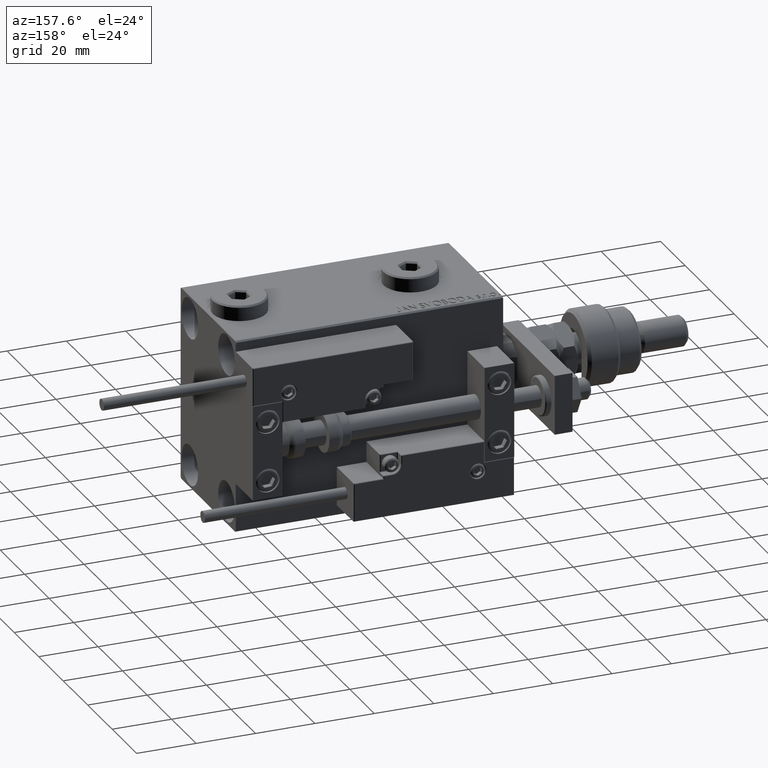
[diagram: clean part render]
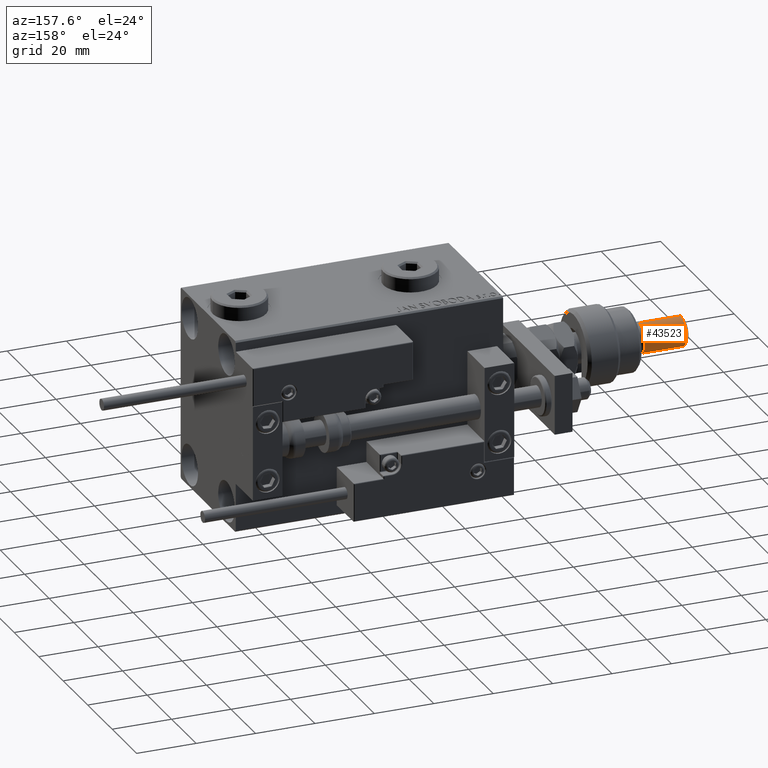
[diagram: same view with one face highlighted and labeled with its STEP entity id]
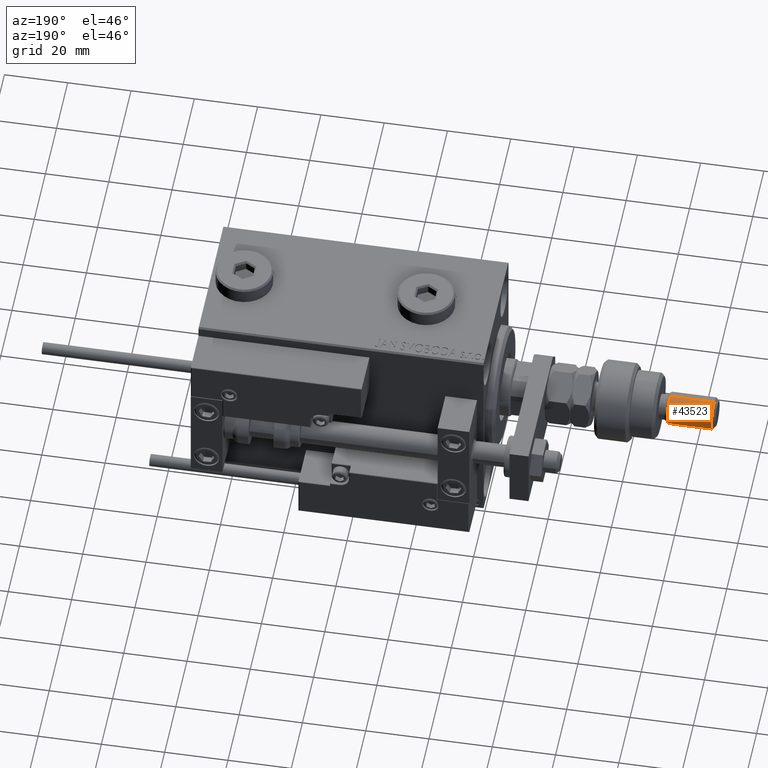
[diagram: same view with one face highlighted and labeled with its STEP entity id]
A machine part, auxiliary view. The second image highlights one B-rep face of the part: STEP entity #43523.
A second angle (auxiliary view) of the same face is appended — the face is thin or edge-on in the first view.
In plain terms, the highlighted cylindrical surface (edge-blend (fillet) strip) has radius 5 mm, axis along (1, -0, -0).
Its self-contained STEP definition (entity closure, byte-faithful):
#3415 = VECTOR ( 'NONE', #22433, 1000.000000000000000 ) ;
#4168 = EDGE_CURVE ( 'NONE', #24887, #9719, #5931, .T. ) ;
#4368 = EDGE_CURVE ( 'NONE', #48564, #24887, #27101, .T. ) ;
#5931 = LINE ( 'NONE', #51856, #3415 ) ;
#7130 = VERTEX_POINT ( 'NONE', #15501 ) ;
#7221 = DIRECTION ( 'NONE',  ( -1.000000000000000000, 0.000000000000000000, 0.000000000000000000 ) ) ;
#8208 = DIRECTION ( 'NONE',  ( 1.000000000000000000, 0.000000000000000000, 0.000000000000000000 ) ) ;
#8407 = EDGE_CURVE ( 'NONE', #48564, #7130, #34191, .T. ) ;
#9719 = VERTEX_POINT ( 'NONE', #15650 ) ;
#15181 = CYLINDRICAL_SURFACE ( 'NONE', #34871, 5.000000000000000888 ) ;
#15501 = CARTESIAN_POINT ( 'NONE',  ( -5.000000000000000888, 0.000000000000000000, 21.99999999999999289 ) ) ;
#15650 = CARTESIAN_POINT ( 'NONE',  ( 5.000000000000000888, 6.123233995736767268E-16, 21.99999999999999289 ) ) ;
#15704 = AXIS2_PLACEMENT_3D ( 'NONE', #20589, #37393, #8208 ) ;
#17695 = CARTESIAN_POINT ( 'NONE',  ( 5.000000000000000888, 6.123233995736767268E-16, 36.00000000000000711 ) ) ;
#17769 = ORIENTED_EDGE ( 'NONE', *, *, #8407, .F. ) ;
#20589 = CARTESIAN_POINT ( 'NONE',  ( 0.000000000000000000, 0.000000000000000000, 21.99999999999999289 ) ) ;
#21298 = CARTESIAN_POINT ( 'NONE',  ( 0.000000000000000000, 0.000000000000000000, 36.00000000000000711 ) ) ;
#22433 = DIRECTION ( 'NONE',  ( -0.000000000000000000, -0.000000000000000000, -1.000000000000000000 ) ) ;
#22858 = VECTOR ( 'NONE', #50951, 1000.000000000000000 ) ;
#24887 = VERTEX_POINT ( 'NONE', #17695 ) ;
#27101 = CIRCLE ( 'NONE', #49065, 5.000000000000000888 ) ;
#33959 = DIRECTION ( 'NONE',  ( 1.000000000000000000, 0.000000000000000000, 0.000000000000000000 ) ) ;
#34191 = LINE ( 'NONE', #51489, #22858 ) ;
#34494 = DIRECTION ( 'NONE',  ( 0.000000000000000000, 0.000000000000000000, -1.000000000000000000 ) ) ;
#34871 = AXIS2_PLACEMENT_3D ( 'NONE', #40240, #53674, #7221 ) ;
#35908 = CIRCLE ( 'NONE', #15704, 5.000000000000000888 ) ;
#36399 = FACE_OUTER_BOUND ( 'NONE', #51397, .T. ) ;
#37393 = DIRECTION ( 'NONE',  ( -0.000000000000000000, -0.000000000000000000, 1.000000000000000000 ) ) ;
#38437 = ORIENTED_EDGE ( 'NONE', *, *, #4368, .T. ) ;
#40240 = CARTESIAN_POINT ( 'NONE',  ( 0.000000000000000000, 0.000000000000000000, 37.00000000000000000 ) ) ;
#43523 = ADVANCED_FACE ( 'NONE', ( #36399 ), #15181, .T. ) ;
#44523 = ORIENTED_EDGE ( 'NONE', *, *, #4168, .T. ) ;
#47922 = EDGE_CURVE ( 'NONE', #9719, #7130, #35908, .T. ) ;
#47963 = CARTESIAN_POINT ( 'NONE',  ( -5.000000000000000888, 0.000000000000000000, 36.00000000000000711 ) ) ;
#48564 = VERTEX_POINT ( 'NONE', #47963 ) ;
#49065 = AXIS2_PLACEMENT_3D ( 'NONE', #21298, #34494, #33959 ) ;
#50951 = DIRECTION ( 'NONE',  ( -0.000000000000000000, -0.000000000000000000, -1.000000000000000000 ) ) ;
#51397 = EDGE_LOOP ( 'NONE', ( #38437, #44523, #52463, #17769 ) ) ;
#51489 = CARTESIAN_POINT ( 'NONE',  ( -5.000000000000000888, 0.000000000000000000, 37.00000000000000000 ) ) ;
#51856 = CARTESIAN_POINT ( 'NONE',  ( 5.000000000000000888, 6.123233995736767268E-16, 37.00000000000000000 ) ) ;
#52463 = ORIENTED_EDGE ( 'NONE', *, *, #47922, .T. ) ;
#53674 = DIRECTION ( 'NONE',  ( -0.000000000000000000, -0.000000000000000000, -1.000000000000000000 ) ) ;